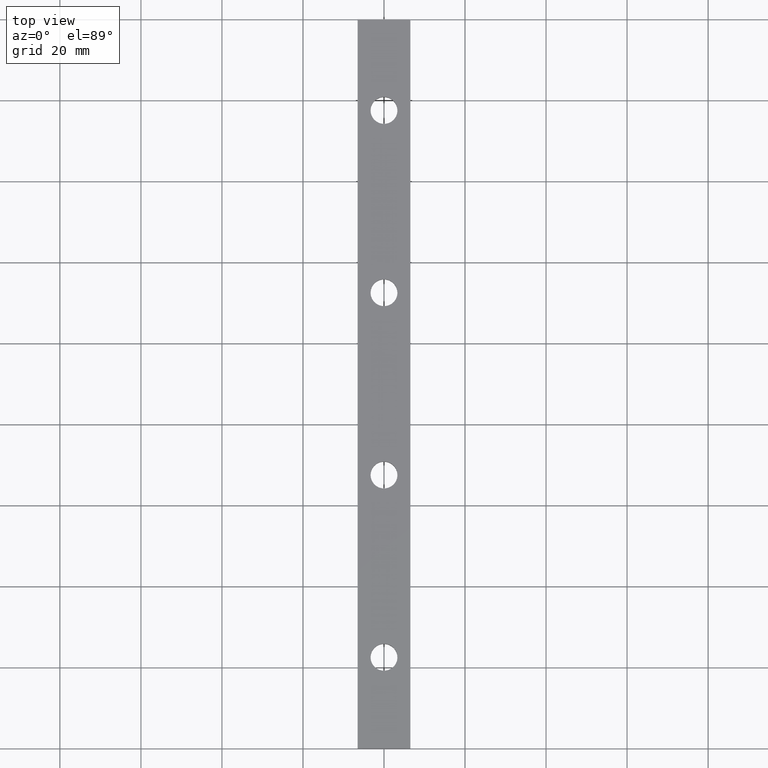
[diagram: clean part render]
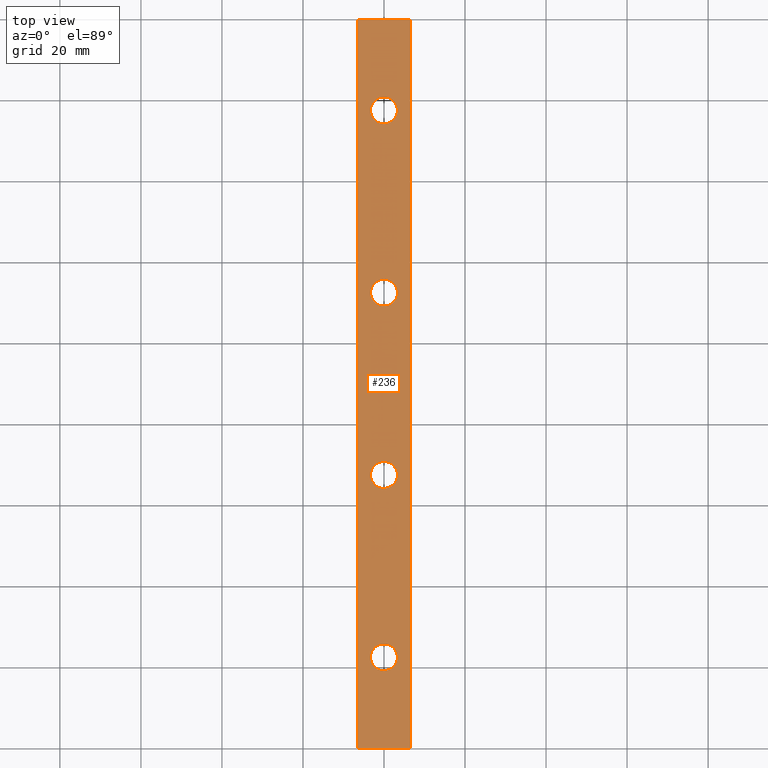
[diagram: same view with one face highlighted and labeled with its STEP entity id]
A machine part, top view. The second image highlights one B-rep face of the part: STEP entity #236.
In plain terms, the highlighted planar face has unit normal (0, 0, -1).
Its self-contained STEP definition (entity closure, byte-faithful):
#21=FACE_BOUND('',#58,.T.);
#22=FACE_BOUND('',#59,.T.);
#23=FACE_BOUND('',#60,.T.);
#24=FACE_BOUND('',#61,.T.);
#33=CIRCLE('',#251,3.3235);
#34=CIRCLE('',#252,3.3235);
#35=CIRCLE('',#253,3.3235);
#36=CIRCLE('',#254,3.3235);
#45=FACE_OUTER_BOUND('',#57,.T.);
#57=EDGE_LOOP('',(#177,#178,#179,#180));
#58=EDGE_LOOP('',(#181));
#59=EDGE_LOOP('',(#182));
#60=EDGE_LOOP('',(#183));
#61=EDGE_LOOP('',(#184));
#80=LINE('',#335,#98);
#87=LINE('',#349,#105);
#90=LINE('',#355,#108);
#91=LINE('',#357,#109);
#98=VECTOR('',#273,180.);
#105=VECTOR('',#284,13.);
#108=VECTOR('',#289,180.);
#109=VECTOR('',#292,13.);
#113=VERTEX_POINT('',#328);
#116=VERTEX_POINT('',#333);
#121=VERTEX_POINT('',#347);
#123=VERTEX_POINT('',#353);
#124=VERTEX_POINT('',#358);
#125=VERTEX_POINT('',#360);
#126=VERTEX_POINT('',#362);
#127=VERTEX_POINT('',#364);
#136=EDGE_CURVE('',#116,#113,#80,.T.);
#143=EDGE_CURVE('',#121,#116,#87,.T.);
#146=EDGE_CURVE('',#121,#123,#90,.T.);
#147=EDGE_CURVE('',#123,#113,#91,.T.);
#148=EDGE_CURVE('',#124,#124,#33,.T.);
#149=EDGE_CURVE('',#125,#125,#34,.T.);
#150=EDGE_CURVE('',#126,#126,#35,.T.);
#151=EDGE_CURVE('',#127,#127,#36,.T.);
#177=ORIENTED_EDGE('',*,*,#147,.T.);
#178=ORIENTED_EDGE('',*,*,#136,.F.);
#179=ORIENTED_EDGE('',*,*,#143,.F.);
#180=ORIENTED_EDGE('',*,*,#146,.T.);
#181=ORIENTED_EDGE('',*,*,#148,.T.);
#182=ORIENTED_EDGE('',*,*,#149,.T.);
#183=ORIENTED_EDGE('',*,*,#150,.T.);
#184=ORIENTED_EDGE('',*,*,#151,.T.);
#215=PLANE('',#250);
#236=ADVANCED_FACE('',(#45,#21,#22,#23,#24),#215,.F.);
#250=AXIS2_PLACEMENT_3D('',#356,#290,#291);
#251=AXIS2_PLACEMENT_3D('',#359,#293,#294);
#252=AXIS2_PLACEMENT_3D('',#361,#295,#296);
#253=AXIS2_PLACEMENT_3D('',#363,#297,#298);
#254=AXIS2_PLACEMENT_3D('',#365,#299,#300);
#273=DIRECTION('',(0.,-1.,0.));
#284=DIRECTION('',(1.,0.,1.33440267382831E-16));
#289=DIRECTION('',(0.,-1.,0.));
#290=DIRECTION('center_axis',(1.33440267382831E-16,0.,-1.));
#291=DIRECTION('ref_axis',(-1.,0.,0.));
#292=DIRECTION('',(1.,0.,1.33440267382831E-16));
#293=DIRECTION('center_axis',(1.33440267382831E-16,0.,-1.));
#294=DIRECTION('ref_axis',(1.,0.,1.33440267382831E-16));
#295=DIRECTION('center_axis',(1.33440267382831E-16,0.,-1.));
#296=DIRECTION('ref_axis',(1.,0.,1.33440267382831E-16));
#297=DIRECTION('center_axis',(1.33440267382831E-16,0.,-1.));
#298=DIRECTION('ref_axis',(1.,0.,1.33440267382831E-16));
#299=DIRECTION('center_axis',(1.33440267382831E-16,0.,-1.));
#300=DIRECTION('ref_axis',(1.,0.,1.33440267382831E-16));
#328=CARTESIAN_POINT('',(6.5,0.,2.5));
#333=CARTESIAN_POINT('',(6.5,180.,2.5));
#335=CARTESIAN_POINT('',(6.5,180.,2.5));
#347=CARTESIAN_POINT('',(-6.5,180.,2.5));
#349=CARTESIAN_POINT('',(-6.5,180.,2.5));
#353=CARTESIAN_POINT('',(-6.5,0.,2.5));
#355=CARTESIAN_POINT('',(-6.5,180.,2.5));
#356=CARTESIAN_POINT('Origin',(-6.5,180.,2.5));
#357=CARTESIAN_POINT('',(-6.5,0.,2.5));
#358=CARTESIAN_POINT('',(3.3235,112.5,2.5));
#359=CARTESIAN_POINT('Origin',(-8.67361737988404E-16,112.5,2.5));
#360=CARTESIAN_POINT('',(3.3235,67.5,2.5));
#361=CARTESIAN_POINT('Origin',(-8.67361737988404E-16,67.5,2.5));
#362=CARTESIAN_POINT('',(3.3235,157.5,2.5));
#363=CARTESIAN_POINT('Origin',(-8.67361737988404E-16,157.5,2.5));
#364=CARTESIAN_POINT('',(3.3235,22.5,2.5));
#365=CARTESIAN_POINT('Origin',(-8.67361737988404E-16,22.5,2.5));